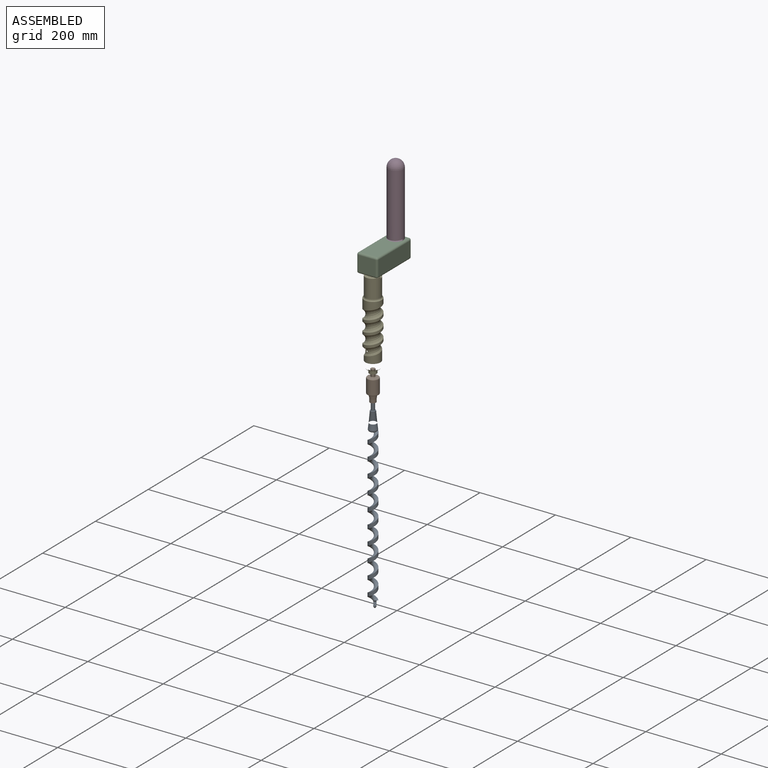
[diagram: assembled view]
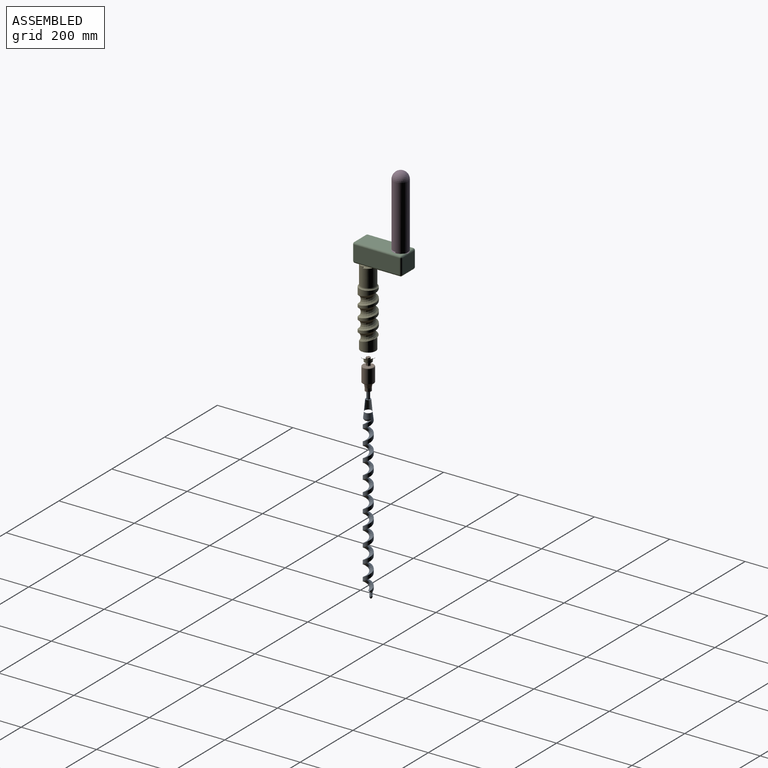
[diagram: assembled view, second angle]
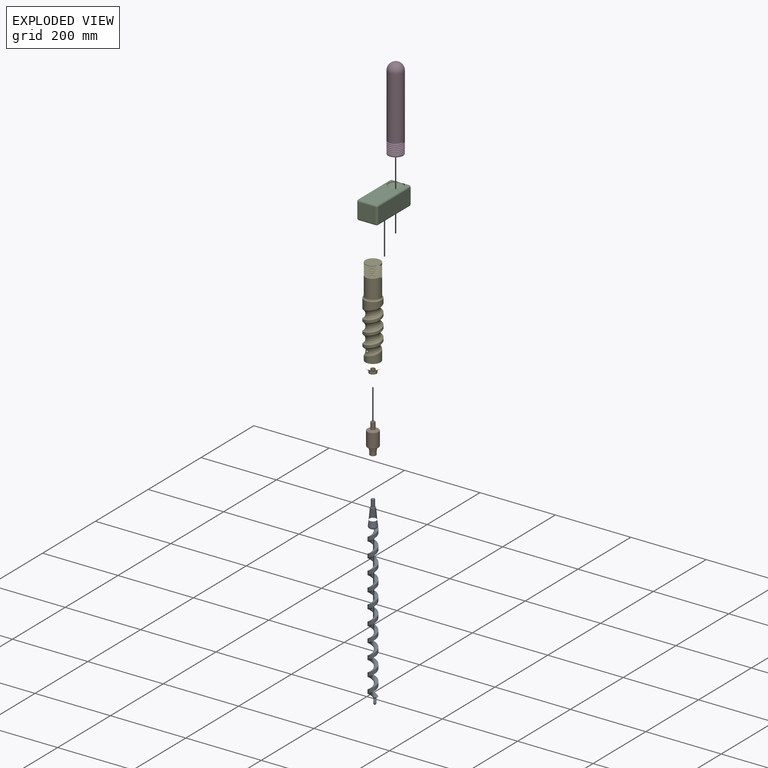
[diagram: exploded view]
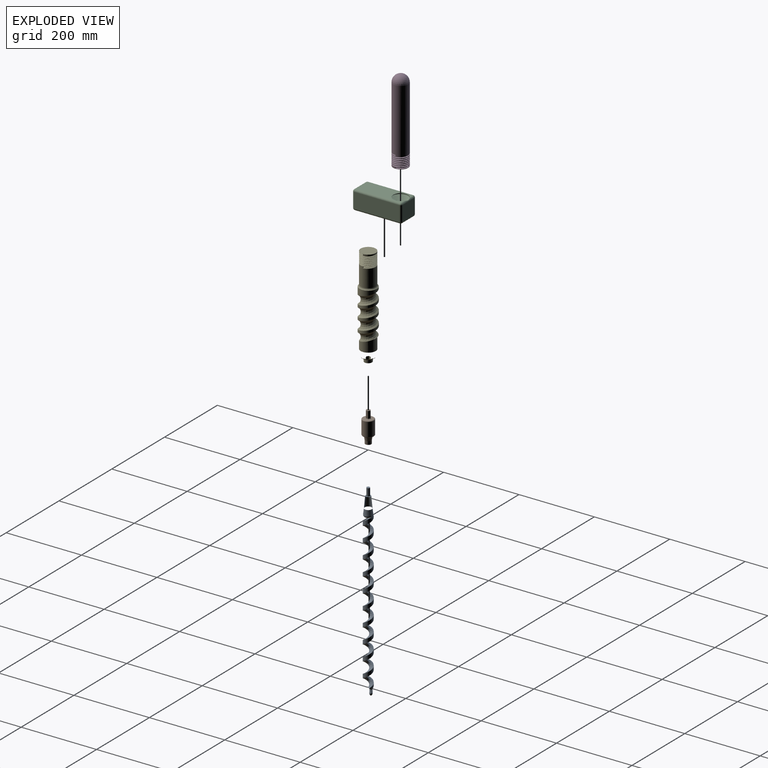
[diagram: exploded view, second angle]
ASSEMBLY  parts=5 mates=4
PART A: 31 faces, bbox 42.3x35.9x496.4 mm
  f0: plane 13.54x13.54mm, normal (0,0,-1), area 85.9mm2, adj f21,f24,f25,f26,f27,f28,f29
  f1: revolved ~7.16x7.16mm, area 55.4mm2, adj f6,f9,f13,f15
  f2: plane 8.58x5.35mm, normal (0,0,1), area 14.7mm2, adj f3,f5,f8
  f3: cylinder r=11.91mm len=406.4mm, axis (0,0,-1), area 7749.5mm2, adj f2,f4,f5,f8,f19
  f4: plane 8.58x5.35mm, normal (0,0,1), area 14.7mm2, adj f3,f5,f8
  f5: bspline ~425.67x42.34mm, area 13077.9mm2, adj f2,f3,f4,f8,f10,f11,f19,f20
  f6: cylinder r=3.59mm len=10.39mm, axis (0,0,-1), area 104mm2, adj f1,f10,f11,f13,f15,f16
  f7: plane 1.75x1.75mm, normal (0,0,1), area 2.4mm2, adj f18
  f8: cone r=3.59mm half-angle=30deg, axis (0,0,-1), area 61.9mm2, adj f2,f3,f4,f5,f10,f11
  f9: cone r=1.59mm half-angle=30deg, axis (0,0,-1), area 13.4mm2, adj f1,f17
  f10: torus R=8.59mm, axis (0,0,1), area 56.6mm2, adj f5,f6,f8,f11,f12
  f11: bspline ~4.37x3.86mm, area 7.7mm2, adj f5,f6,f8,f10
  f12: cylinder r=3.59mm len=7.19mm, axis (0,0,-1), area 15mm2, adj f10,f14,f15,f16
  f13: plane 1.63x1.36mm, normal (-0.1,-0.99,0), area 1.1mm2, adj f1,f6,f15,f16
  f14: plane 1.63x1.36mm, normal (0.1,0.99,0), area 1.1mm2, adj f12,f15,f16
  f15: bspline ~11.49x8.25mm, area 117.5mm2, adj f1,f6,f12,f13,f14,f16
  f16: bspline ~11.49x7.18mm, area 117.4mm2, adj f6,f12,f13,f14,f15
  f17: cone r=1.39mm half-angle=35deg, axis (0,0,-1), area 19.5mm2, adj f9,f18
  f18: torus R=0.87mm, axis (0,0,1), area 7.9mm2, adj f7,f17
  f19: cone r=11.91mm half-angle=7deg, axis (0,0,1), area 1010.9mm2, adj f3,f5,f22,f23
  f20: plane 12.51x9.9mm, normal (0,0,1), area 93.4mm2, adj f5,f23
  f21: cone r=9.4mm half-angle=5deg, axis (0,0,1), area 1529.5mm2, adj f0,f22
  f22: torus R=4.58mm, axis (0,0,-1), area 43.9mm2, adj f19,f21
  f23: torus R=6.25mm, axis (0,0,1), area 354.3mm2, adj f5,f19,f20
  f24: plane 20x4.7mm, normal (-0.99,0.11,0), area 94.6mm2, adj f0,f25,f29,f30
  f25: plane 20x4.34mm, normal (-0.4,0.92,0), area 94.6mm2, adj f0,f24,f26,f30
  f26: plane 20x3.81mm, normal (0.59,0.8,0), area 94.6mm2, adj f0,f25,f27,f30
  f27: plane 20x4.7mm, normal (0.99,-0.11,0), area 94.6mm2, adj f0,f26,f28,f30
  f28: plane 20x4.34mm, normal (0.4,-0.92,0), area 94.6mm2, adj f0,f27,f29,f30
  f29: plane 20x3.81mm, normal (-0.59,-0.8,0), area 94.6mm2, adj f0,f24,f28,f30
  f30: plane 9.41x8.67mm, normal (0,0,-1), area 58.2mm2, adj f24,f25,f26,f27,f28,f29
PART B: 29 faces, bbox 32.5x80x32.5 mm
  f0: plane 15.92x15.92mm, normal (0,-1,0), area 133.2mm2, adj f12,f13,f14,f15,f16,f17,f18
  f1: plane 18x5.68mm, normal (0,0,1), area 102.3mm2, adj f2,f6,f7,f23
  f2: plane 18x4.92mm, normal (-0.87,0,0.5), area 102.3mm2, adj f1,f3,f7,f22
  f3: plane 18x4.92mm, normal (-0.87,0,-0.5), area 102.3mm2, adj f2,f4,f7,f24
  f4: plane 18x5.68mm, normal (0,0,-1), area 102.3mm2, adj f3,f5,f7,f26
  f5: plane 18x4.92mm, normal (0.87,0,-0.5), area 102.3mm2, adj f4,f6,f7,f27
  f6: plane 18x4.92mm, normal (0.87,0,0.5), area 102.3mm2, adj f1,f5,f7,f25
  f7: plane 11.37x9.84mm, normal (0,1,0), area 83.9mm2, adj f1,f2,f3,f4,f5,f6
  f8: cylinder r=15mm len=36mm, axis (0,1,0), area 3392.9mm2, adj f20,f21
  f9: plane 26x26mm, normal (0,-1,0), area 216.8mm2, adj f11,f21
  f10: plane 26x26mm, normal (0,1,0), area 365mm2, adj f20,f22,f23,f24,f25,f26,f27
  f11: cone r=10mm half-angle=10deg, axis (0,1,0), area 581.8mm2, adj f9,f28
  f12: cylinder r=7.96mm len=15.92mm, axis (0,1,0), area 417.8mm2, adj f0,f28
  f13: plane 20x5.03mm, normal (1,0,0), area 100.7mm2, adj f0,f14,f18,f19
  f14: plane 20x4.36mm, normal (0.5,0,0.87), area 100.7mm2, adj f0,f13,f15,f19
  f15: plane 20x4.36mm, normal (-0.5,0,0.87), area 100.7mm2, adj f0,f14,f16,f19
  f16: plane 20x5.03mm, normal (-1,0,0), area 100.7mm2, adj f0,f15,f17,f19
  f17: plane 20x4.36mm, normal (-0.5,0,-0.87), area 100.7mm2, adj f0,f16,f18,f19
  f18: plane 20x4.36mm, normal (0.5,0,-0.87), area 100.7mm2, adj f0,f13,f17,f19
  f19: plane 10.07x8.72mm, normal (0,-1,0), area 65.8mm2, adj f13,f14,f15,f16,f17,f18
  f20: torus R=13mm, axis (0,-1,0), area 281.7mm2, adj f8,f10
  f21: torus R=13mm, axis (0,-1,0), area 281.7mm2, adj f8,f9
  f22: cylinder r=2mm len=7.92mm, axis (0.5,0,0.87), area 20.5mm2, adj f2,f10,f23,f24
  f23: cylinder r=2mm len=7.99mm, axis (1,0,0), area 20.5mm2, adj f1,f10,f22,f25
  f24: cylinder r=2mm len=7.92mm, axis (-0.5,0,0.87), area 20.5mm2, adj f3,f10,f22,f26
  f25: cylinder r=2mm len=7.92mm, axis (0.5,0,-0.87), area 20.5mm2, adj f6,f10,f23,f27
  f26: cylinder r=2mm len=7.99mm, axis (-1,0,0), area 20.5mm2, adj f4,f10,f24,f27
  f27: cylinder r=2mm len=7.92mm, axis (-0.5,0,-0.87), area 20.5mm2, adj f5,f10,f25,f26
  f28: torus R=12.96mm, axis (0,1,0), area 84.8mm2, adj f11,f12
PART C: 49 faces, bbox 58.9x139.1x55.4 mm
  f0: cylinder r=20mm len=40mm, axis (0,0,1), area 903.3mm2, adj f6,f13,f46,f48
  f1: cylinder r=20mm len=40mm, axis (0,0,1), area 48.2mm2, adj f2,f9,f46,f47
  f2: cylinder r=20mm len=40mm, axis (0,0,1), area 59.2mm2, adj f1,f3,f46,f47
  f3: cylinder r=20mm len=40mm, axis (0,0,1), area 59.3mm2, adj f2,f4,f46,f47
  f4: cylinder r=20mm len=40mm, axis (0,0,1), area 59mm2, adj f3,f5,f46,f47
  f5: cylinder r=20mm len=40mm, axis (0,0,1), area 59.3mm2, adj f4,f6,f46,f47
  f6: cylinder r=20mm len=40mm, axis (0,0,1), area 59.2mm2, adj f0,f5,f46,f47
  f7: plane 120x45mm, normal (0,0,1), area 4214.3mm2, adj f14,f31,f36,f39,f42
  f8: plane 120x40mm, normal (-1,0,0), area 4800mm2, adj f28,f37,f38,f42
  f9: plane 121.54x46.54mm, normal (0,0,-1), area 4071.7mm2, adj f1,f23,f27,f28,f29,f46,f47
  f10: plane 120x40mm, normal (1,0,0), area 4800mm2, adj f23,f26,f30,f31
  f11: plane 45x40mm, normal (0,-1,0), area 1800mm2, adj f26,f27,f36,f37
  f12: plane 45x40mm, normal (0,1,0), area 1800mm2, adj f29,f30,f38,f39
  f13: plane 40x40mm, normal (0,0,-1), area 1256.6mm2, adj f0
  f14: cylinder r=20mm len=40mm, axis (0,0,1), area 241.7mm2, adj f7,f15,f39,f43,f44
  f15: cylinder r=20mm len=40mm, axis (0,0,1), area 16.9mm2, adj f14,f16,f44,f45
  f16: cylinder r=20mm len=40mm, axis (0,0,1), area 16.9mm2, adj f15,f17,f44,f45
  f17: cylinder r=20mm len=40mm, axis (0,0,1), area 16.8mm2, adj f16,f18,f44,f45
  f18: cylinder r=20mm len=40mm, axis (0,0,1), area 17.2mm2, adj f17,f19,f44,f45
  f19: cylinder r=20mm len=40mm, axis (0,0,1), area 16.8mm2, adj f18,f20,f44,f45
  f20: cylinder r=20mm len=40mm, axis (0,0,1), area 16.8mm2, adj f19,f21,f22,f44,f45
  f21: cylinder r=20mm len=3.51mm, axis (0,0,1), area 0.2mm2, adj f20,f22,f45
  f22: plane 39.65x39.58mm, normal (0,0,1), area 1002.4mm2, adj f20,f21,f44,f45
  f23: cylinder r=5mm len=120mm, axis (0,-1,0), area 942.5mm2, adj f9,f10,f24,f25
  f24: sphere r=5mm, area 39.3mm2, adj f23,f26,f27
  f25: sphere r=5mm, area 39.3mm2, adj f23,f29,f30
  f26: cylinder r=5mm len=40mm, axis (0,0,-1), area 314.2mm2, adj f10,f11,f24,f32
  f27: cylinder r=5mm len=45mm, axis (-1,0,0), area 296.6mm2, adj f9,f11,f24,f33,f46,f47
  f28: cylinder r=5mm len=120mm, axis (0,1,0), area 942.5mm2, adj f8,f9,f33,f34
  f29: cylinder r=5mm len=45mm, axis (1,0,0), area 353.4mm2, adj f9,f12,f25,f34
  f30: cylinder r=5mm len=40mm, axis (0,0,1), area 314.2mm2, adj f10,f12,f25,f35
  f31: cylinder r=5mm len=120mm, axis (0,1,0), area 942.5mm2, adj f7,f10,f32,f35
  f32: sphere r=5mm, area 39.3mm2, adj f26,f31,f36
  f33: sphere r=5mm, area 39.3mm2, adj f27,f28,f37
  f34: sphere r=5mm, area 51.3mm2, adj f28,f29,f38
  f35: sphere r=5mm, area 55.8mm2, adj f30,f31,f39
  f36: cylinder r=5mm len=45mm, axis (1,0,0), area 353.4mm2, adj f7,f11,f32,f40
  f37: cylinder r=5mm len=40mm, axis (0,0,1), area 314.2mm2, adj f8,f11,f33,f40
  f38: cylinder r=5mm len=40mm, axis (0,0,-1), area 314.2mm2, adj f8,f12,f34,f41
  f39: cylinder r=5mm len=45mm, axis (-1,0,0), area 274mm2, adj f7,f12,f14,f35,f41
  f40: sphere r=5mm, area 39.3mm2, adj f36,f37,f42
  f41: sphere r=5mm, area 39.3mm2, adj f38,f39,f42
  f42: cylinder r=5mm len=120mm, axis (0,-1,0), area 942.5mm2, adj f7,f8,f40,f41
  f43: plane 4.52x4.15mm, normal (0,1,0), area 9.4mm2, adj f14,f44,f45
  f44: bspline ~46.19x40mm, area 3800.6mm2, adj f14,f15,f16,f17,f18,f19,f20,f22
  f45: bspline ~46.19x40mm, area 3428.4mm2, adj f15,f16,f17,f18,f19,f20,f21,f22
  f46: bspline ~52.11x45.13mm, area 2449.7mm2, adj f0,f1,f2,f3,f4,f5,f6,f9
  f47: bspline ~52.11x45.13mm, area 2294.7mm2, adj f1,f2,f3,f4,f5,f6,f9,f27
  f48: plane 2.56x2.39mm, normal (0,-1,0), area 3.1mm2, adj f0,f46,f47
PART D: 13 faces, bbox 40x220x46.2 mm
  f0: cylinder r=20mm len=40mm, axis (0,1,0), area 476.4mm2, adj f6,f7,f8,f10,f11
  f1: cylinder r=20mm len=172.22mm, axis (0,1,0), area 21288.5mm2, adj f2,f9,f10,f11,f12
  f2: cylinder r=20mm len=40mm, axis (0,1,0), area 201mm2, adj f1,f3,f10,f11
  f3: cylinder r=20mm len=40mm, axis (0,1,0), area 201.1mm2, adj f2,f4,f10,f11
  f4: cylinder r=20mm len=40mm, axis (0,1,0), area 201mm2, adj f3,f5,f10,f11
  f5: cylinder r=20mm len=40mm, axis (0,1,0), area 201.1mm2, adj f4,f6,f10,f11
  f6: cylinder r=20mm len=40mm, axis (0,1,0), area 200.9mm2, adj f0,f5,f10,f11
  f7: plane 40x40mm, normal (0,-1,0), area 1256.6mm2, adj f0
  f8: plane 8.19x2.69mm, normal (0,0,-1), area 11mm2, adj f0,f10,f11
  f9: plane 8.19x2.69mm, normal (0,0,1), area 11mm2, adj f1,f10,f11
  f10: bspline ~46.19x40mm, area 5815.1mm2, adj f0,f1,f2,f3,f4,f5,f6,f8
  f11: bspline ~46.19x40mm, area 5810.4mm2, adj f0,f1,f2,f3,f4,f5,f6,f8
  f12: sphere r=20mm, area 2513.3mm2, adj f1
PART E: 36 faces, bbox 54.5x265.4x54.5 mm
  f0: plane 20x20mm, normal (0,1,0), area 225.5mm2, adj f26,f29,f30,f31,f32,f33,f34
  f1: cylinder r=23mm len=115mm, axis (0,-1,0), area 5171.3mm2, adj f15,f16,f20,f22,f23
  f2: cylinder r=20mm len=51.57mm, axis (0,1,0), area 6078.3mm2, adj f3,f11,f13,f14,f15
  f3: cylinder r=20mm len=40mm, axis (0,1,0), area 8.8mm2, adj f2,f4,f13,f14
  f4: cylinder r=20mm len=40mm, axis (0,1,0), area 8.8mm2, adj f3,f5,f13,f14
  f5: cylinder r=20mm len=40mm, axis (0,1,0), area 8.8mm2, adj f4,f6,f13,f14
  f6: cylinder r=20mm len=40mm, axis (0,1,0), area 8.7mm2, adj f5,f7,f13,f14
  f7: cylinder r=20mm len=40mm, axis (0,1,0), area 8.7mm2, adj f6,f8,f13,f14
  f8: cylinder r=20mm len=40mm, axis (0,1,0), area 124.1mm2, adj f7,f9,f10,f12,f13,f14
  f9: cylinder r=20mm len=40mm, axis (0,1,0), area 150.7mm2, adj f8,f10,f13
  f10: plane 40x40mm, normal (0,-1,0), area 1256.6mm2, adj f8,f9,f12,f13
  f11: plane 4.22x3.65mm, normal (0,0,1), area 7.7mm2, adj f2,f13,f14
  f12: plane 4.21x3.65mm, normal (0,0,-1), area 7.7mm2, adj f8,f10,f13,f14
  f13: bspline ~46.19x40mm, area 3372.4mm2, adj f2,f3,f4,f5,f6,f7,f8,f9
  f14: bspline ~46.19x40mm, area 3368.7mm2, adj f2,f3,f4,f5,f6,f7,f8,f11
  f15: torus R=25mm, axis (0,1,0), area 766.5mm2, adj f1,f2,f20,f22
  f16: torus R=18mm, axis (0,1,0), area 354.4mm2, adj f1,f19,f22,f23
  f17: cylinder r=20mm len=40mm, axis (0,-1,0), area 2884.8mm2, adj f18,f19,f21,f23,f24
  f18: cylinder r=20mm len=9.53mm, axis (0,-1,0), area 11.8mm2, adj f17,f19,f22
  f19: plane 36.3x35.47mm, normal (0,-1,0), area 113.9mm2, adj f16,f17,f18,f22,f23
  f20: plane 23.15x6.81mm, normal (0,0,1), area 108mm2, adj f1,f15,f22,f23
  f21: plane 18.33x3.84mm, normal (0,0,-1), area 45.4mm2, adj f17,f22,f23
  f22: bspline ~131.53x48.37mm, area 6536.5mm2, adj f1,f15,f16,f18,f19,f20,f21,f23
  f23: bspline ~131.53x48.37mm, area 6124.6mm2, adj f1,f16,f17,f19,f20,f21,f22
  f24: cone r=20mm half-angle=12deg, axis (0,-1,0), area 2134.4mm2, adj f17,f28
  f25: plane 28.26x28.26mm, normal (0,1,0), area 174.8mm2, adj f27,f28
  f26: cylinder r=10mm len=20mm, axis (0,-1,0), area 502.7mm2, adj f0,f27
  f27: torus R=12mm, axis (0,1,0), area 211.7mm2, adj f25,f26
  f28: torus R=14.13mm, axis (0,1,0), area 261.6mm2, adj f24,f25
  f29: plane 10x5.79mm, normal (-0.99,0,0.13), area 58.4mm2, adj f0,f30,f34,f35
  f30: plane 10x5.4mm, normal (-0.38,0,0.92), area 58.4mm2, adj f0,f29,f31,f35
  f31: plane 10x4.63mm, normal (0.61,0,0.79), area 58.4mm2, adj f0,f30,f32,f35
  f32: plane 10x5.79mm, normal (0.99,0,-0.13), area 58.4mm2, adj f0,f31,f33,f35
  f33: plane 10x5.4mm, normal (0.38,0,-0.92), area 58.4mm2, adj f0,f32,f34,f35
  f34: plane 10x4.63mm, normal (-0.61,0,-0.79), area 58.4mm2, adj f0,f29,f33,f35
  f35: plane 11.58x10.81mm, normal (0,1,0), area 88.7mm2, adj f29,f30,f31,f32,f33,f34
PLACE A rot(axis=(0,1,0),180deg) t=(57.69,341,-116.8)mm
PLACE B rot(axis=(0.58,0.58,0.58),120deg) t=(57.69,341,33.2)mm fixed
PLACE C t=(57.69,447.82,288.2)mm
PLACE D rot(axis=(1,0,0),90deg) t=(57.69,427.05,483.2)mm
PLACE E rot(axis=(-1,0,0),90deg) t=(57.69,341,203.2)mm
MATE fastened D.f0 <-> C.f14  axis (0,0,-1) through (57.69,427.05,283.2)mm
MATE fastened E.f1 <-> B.f8  axis (0,0,-1) through (57.69,341,33.2)mm
MATE fastened C.f0 <-> E.f2  axis (0,0,-1) through (57.69,341,288.2)mm
MATE fastened A.f3 <-> B.f8  axis (0,0,1) through (57.69,341,-46.8)mm
